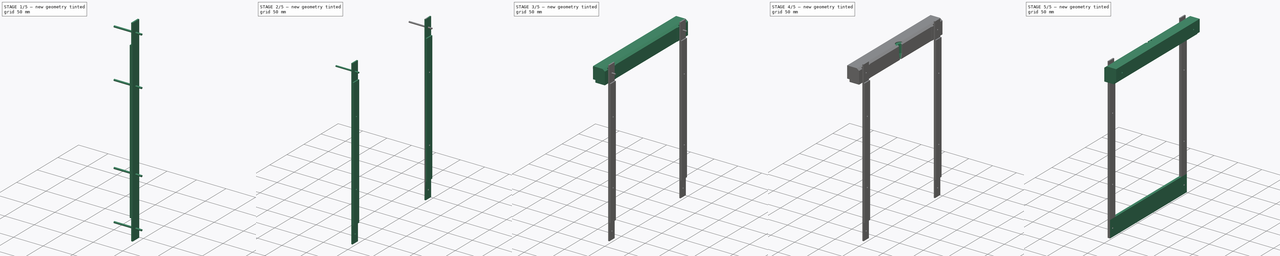
[diagram: build sequence overview — one tinted view per stage of 5, left to right]
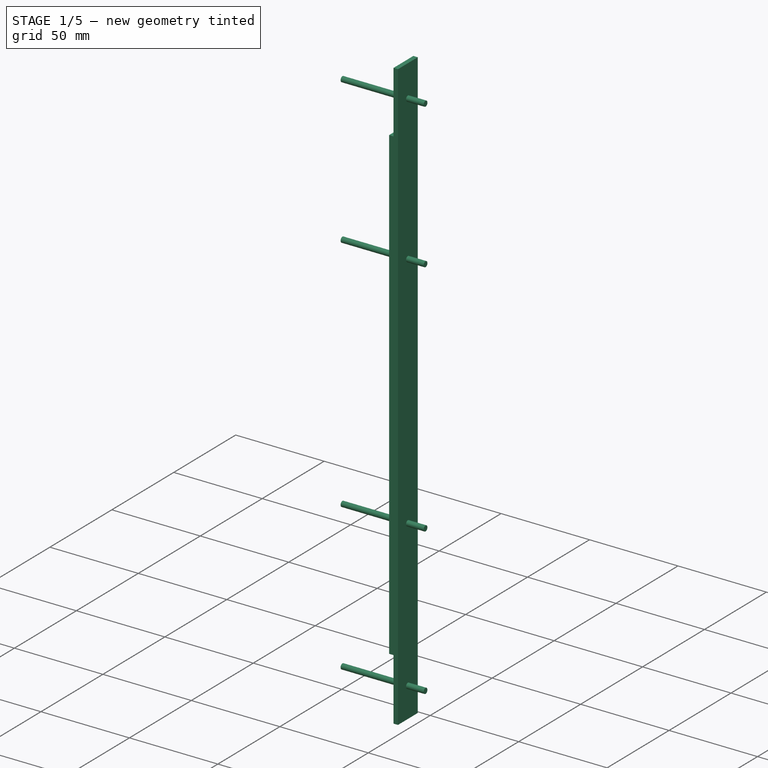
[diagram: stage 1 of 5 — iso view after this stage's code; geometry added in this stage tinted green]
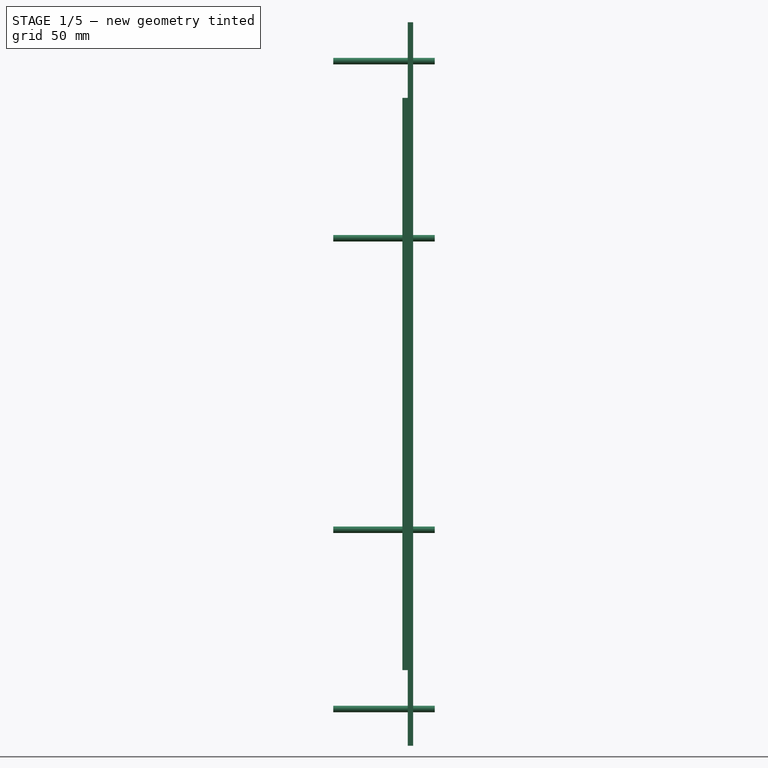
[diagram: stage 1 of 5 — front view after this stage's code; geometry added in this stage tinted green]
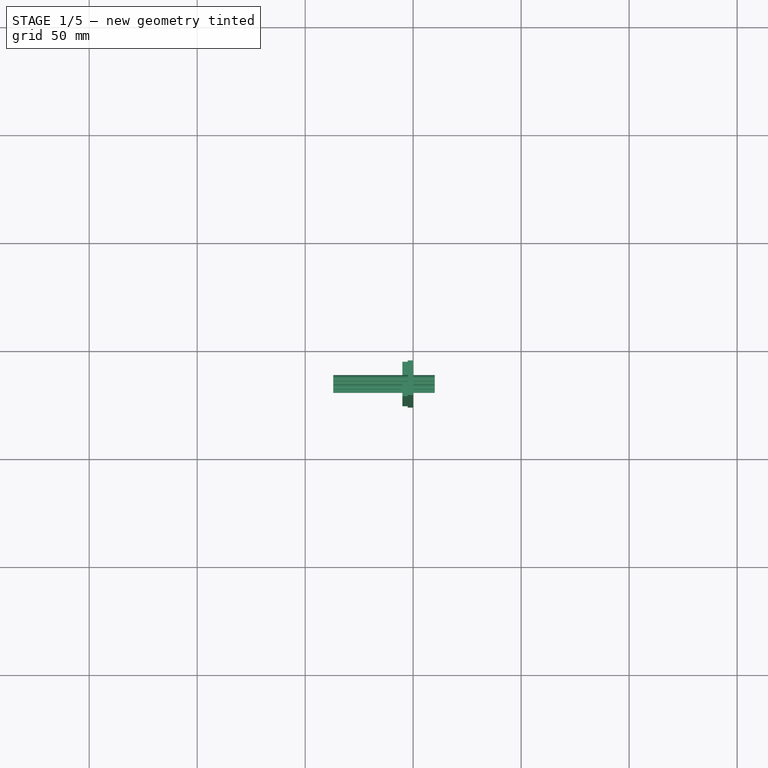
[diagram: stage 1 of 5 — top view after this stage's code; geometry added in this stage tinted green]
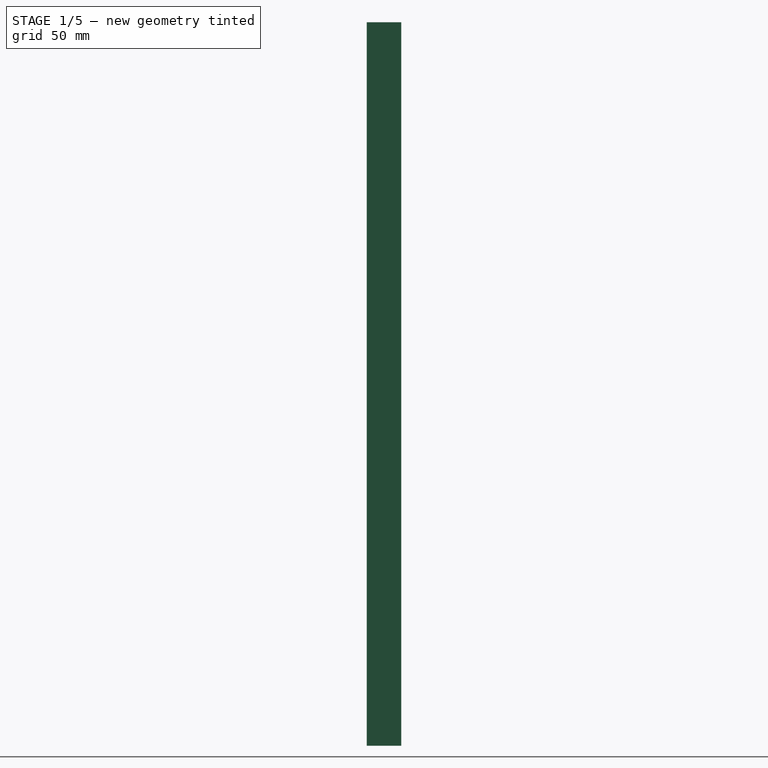
[diagram: stage 1 of 5 — right view after this stage's code; geometry added in this stage tinted green]
FCSTD DOCUMENT
Label: rhizotron_blueprints_3
objects: Part::Cylinder×10, Part::Cut×6, Part::MultiFuse×5, Drawing::FeatureViewPart×4, Sketcher::SketchObject×3, PartDesign::Pad×3, Part::Box×3, Part::Mirroring×3, Drawing::FeaturePage×2, Part::Cone×1
note: 37 computed .brp shape members not serialized (recipe doc carries the construction recipe); baked Part::Feature solids carry a one-line shape summary decoded from their .brp

FEATURE [Sketcher::SketchObject] Sketch001
  Placement = pos=(0,-10,0) rot=(1,0,0;1.57079rad)
  sketch-geometry (8):
    g0: LineSegment StartX=-5 StartY=-265 StartZ=0 EndX=-5 EndY=0 EndZ=0
    g1: LineSegment StartX=-5 StartY=0 StartZ=0 EndX=-2.5 EndY=0 EndZ=0
    g2: LineSegment StartX=-2.5 StartY=0 StartZ=0 EndX=-2.5 EndY=35 EndZ=0
    g3: LineSegment StartX=-2.5 StartY=35 StartZ=0 EndX=0 EndY=35 EndZ=0
    g4: LineSegment StartX=0 StartY=35 StartZ=0 EndX=0 EndY=-300 EndZ=0
    g5: LineSegment StartX=0 StartY=-300 StartZ=0 EndX=-2.5 EndY=-300 EndZ=0
    g6: LineSegment StartX=-2.5 StartY=-300 StartZ=0 EndX=-2.5 EndY=-265 EndZ=0
    g7: LineSegment StartX=-2.5 StartY=-265 StartZ=0 EndX=-5 EndY=-265 EndZ=0
  constraints (24):
    c: Vertical(g0)
    c: Coincident(g0,g1)
    c: Horizontal(g1)
    c: Coincident(g1,g2)
    c: Vertical(g2)
    c: Coincident(g2,g3)
    c: Horizontal(g3)
    c: Coincident(g3,g4)
    c: Vertical(g4)
    c: Coincident(g4,g5)
    c: Horizontal(g5)
    c: Coincident(g5,g6)
    c: Vertical(g6)
    c: Coincident(g6,g7)
    c: Coincident(g7,g0)
    c: Horizontal(g7)
    c: Equal(g6,g2)
    c: Equal(g1,g7)
    c: DistanceX(g0,g3) = 5
    c: Distance(g3) = 2.5
    c: Distance(g6) = 35
    c: DistanceY(g1,g5) = -300
    c: DistanceX(g1) = -2.5
    c: DistanceY(g1) = 0
FEATURE [PartDesign::Pad] Pad002  label="side"
  Length = 16
  Length2 = 100
  Placement = pos=(0,-10,0) rot=(1,0,0;1.57079rad)
  Sketch = -> Sketch001
  Type = 0
FEATURE [Sketcher::SketchObject] Sketch002
  Placement = pos=(0,0,0) rot=(0.57735,0.57735,0.57735;2.0944rad)
  sketch-geometry (4):
    g0: LineSegment StartX=-10 StartY=-300 StartZ=0 EndX=-240 EndY=-300 EndZ=0
    g1: LineSegment StartX=-240 StartY=-300 StartZ=0 EndX=-240 EndY=-265 EndZ=0
    g2: LineSegment StartX=-240 StartY=-265 StartZ=0 EndX=-10 EndY=-265 EndZ=0
    g3: LineSegment StartX=-10 StartY=-265 StartZ=0 EndX=-10 EndY=-300 EndZ=0
  constraints (12):
    c: Coincident(g0,g1)
    c: Coincident(g1,g2)
    c: Coincident(g2,g3)
    c: Coincident(g3,g0)
    c: Horizontal(g0)
    c: Horizontal(g2)
    c: Vertical(g1)
    c: Vertical(g3)
    c: Distance(g0) = 230
    c: Distance(g1) = 35
    c: DistanceX(g2) = -10
    c: DistanceY(g2) = -265
FEATURE [Part::Cylinder] Cylinder006
  Angle = 360
  Height = 47
  Placement = pos=(-37,-18,-65) rot=(0,1,0;1.5708rad)
  Radius = 1.5
FEATURE [Part::Cylinder] Cylinder008
  Angle = 360
  Height = 47
  Placement = pos=(-37,-18,-200) rot=(0,1,0;1.5708rad)
  Radius = 1.5
FEATURE [Part::Cylinder] Cylinder011
  Angle = 360
  Height = 47
  Placement = pos=(-37,-18,-283) rot=(0,1,0;1.5708rad)
  Radius = 1.5
FEATURE [Part::Cylinder] Cylinder012
  Angle = 360
  Height = 47
  Placement = pos=(-37,-18,17) rot=(0,1,0;1.5708rad)
  Radius = 1.5
FEATURE [Part::MultiFuse] Fusion004  label="Side holes"
  Shapes = -> [Cylinder006,Cylinder008,Cylinder011,Cylinder012]
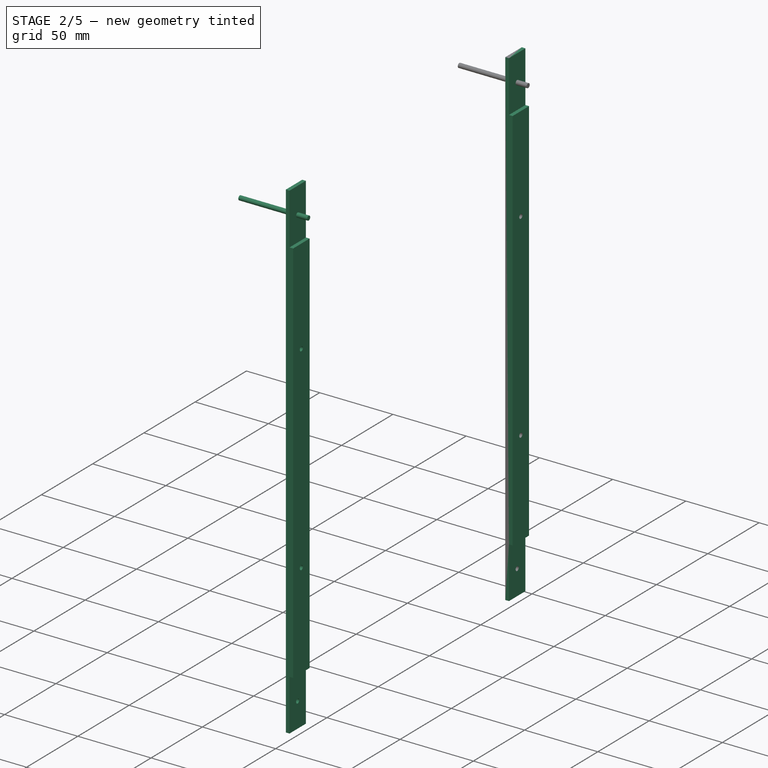
[diagram: stage 2 of 5 — iso view after this stage's code; geometry added in this stage tinted green]
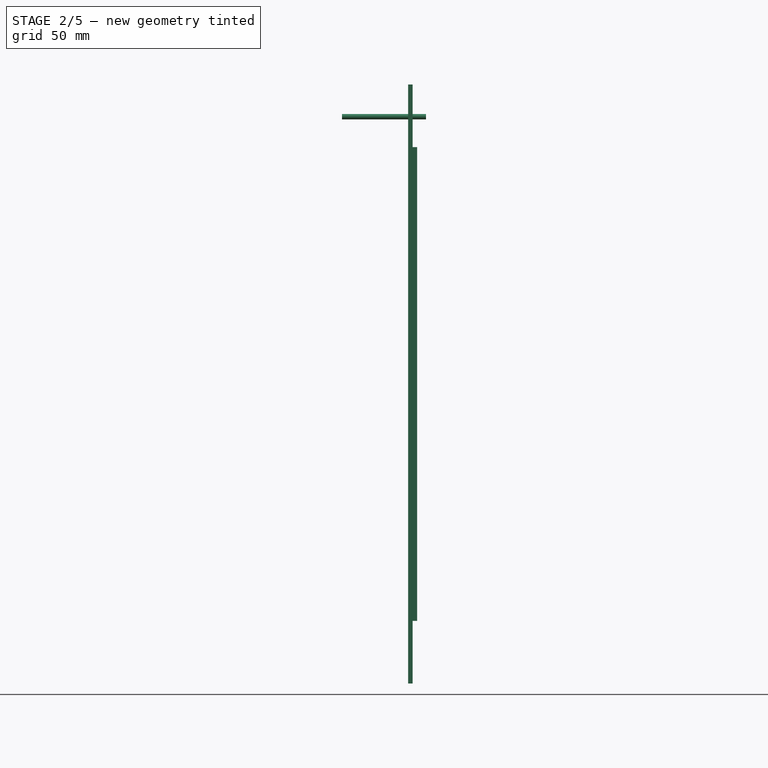
[diagram: stage 2 of 5 — front view after this stage's code; geometry added in this stage tinted green]
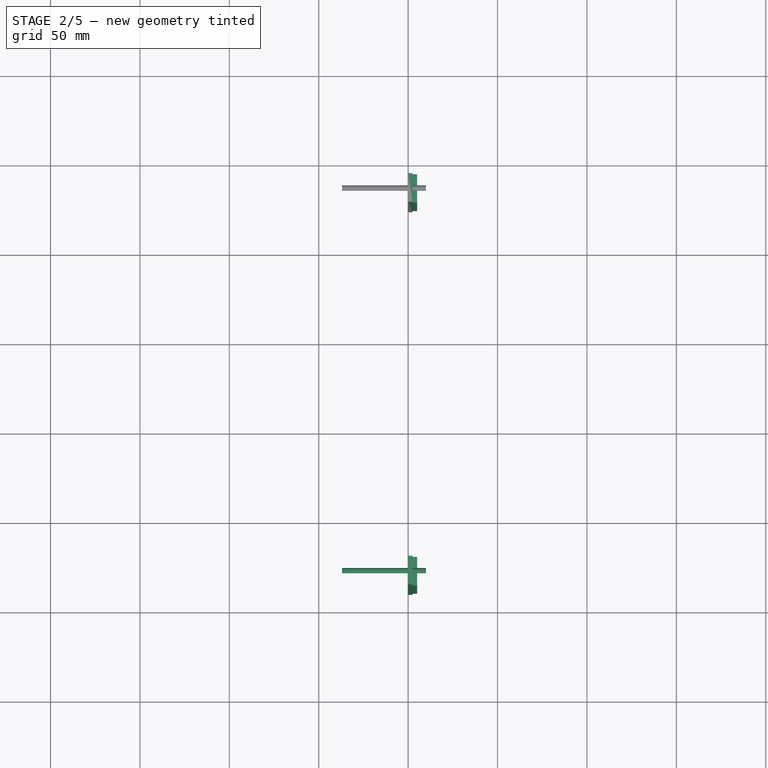
[diagram: stage 2 of 5 — top view after this stage's code; geometry added in this stage tinted green]
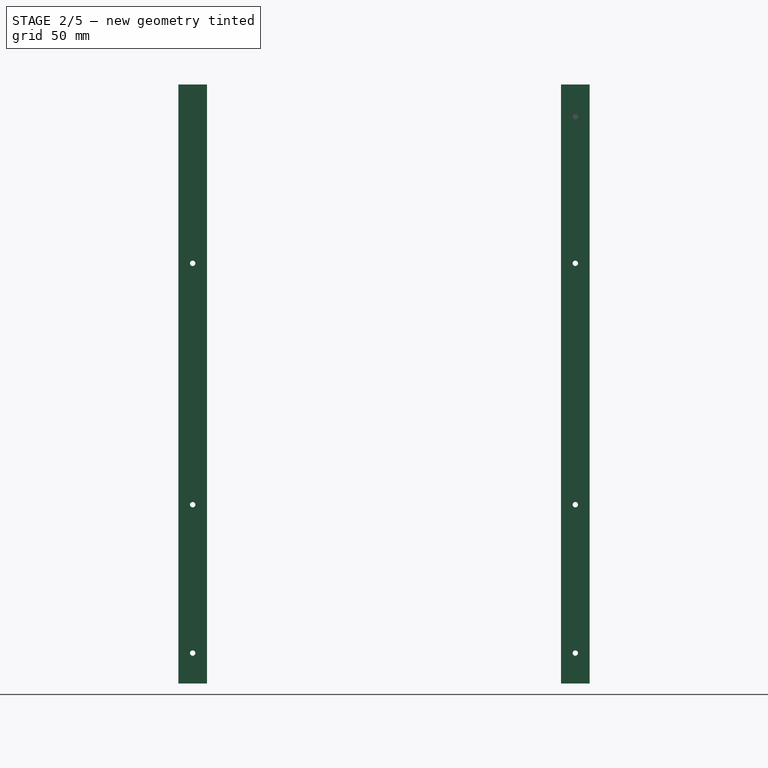
[diagram: stage 2 of 5 — right view after this stage's code; geometry added in this stage tinted green]
FEATURE [Part::Cylinder] Cylinder002
  Angle = 360
  Height = 47
  Placement = pos=(-37,-18,17) rot=(0,1,0;1.5708rad)
  Radius = 1.5
FEATURE [Part::Cylinder] Cylinder003
  Angle = 360
  Height = 47
  Placement = pos=(-37,-232,17) rot=(0,1,0;1.5708rad)
  Radius = 1.5
FEATURE [Part::Cut] Cut004  label="Side-final"
  Base = -> Pad002
  Tool = -> Fusion004
FEATURE [Part::Mirroring] Part__Mirroring001  label="Side-final (Mirror #2)"
  Base = (0,0,0)
  Normal = (1,0,0)
  Source = -> Cut004
FEATURE [Part::Cut] Cut005  label="Side-final001"
  Base = -> Pad002
  Placement = pos=(0,-214,0) rot=(0,0,1;0rad)
  Tool = -> Fusion004
FEATURE [Part::Mirroring] Part__Mirroring002  label="Side-final (Mirror #2)001"
  Base = (0,0,0)
  Normal = (1,0,0)
  Source = -> Cut005
FEATURE [Drawing::FeatureViewPart] Ortho  label="Top"
  Direction = (0,0,1)
  LineWidth = 0.35
  Rotation = 90
  Scale = 0.75
  ShowHiddenLines = true
  ShowSmoothLines = false
  Source = -> Cut002
  ViewResult = <blob: 4581 chars omitted>
  X = 77.15
  Y = 91.975
FEATURE [Drawing::FeatureViewPart] Ortho001  label="Front"
  Direction = (0,1,0)
  LineWidth = 0.35
  Rotation = 0
  Scale = 0.75
  ShowHiddenLines = true
  ShowSmoothLines = false
  Source = -> Cut002
  ViewResult = <blob: 4334 chars omitted>
  X = 32.65
  Y = 91.975
FEATURE [Drawing::FeatureViewPart] Ortho002  label="Right"
  Direction = (1,0,0)
  LineWidth = 0.35
  Rotation = -90
  Scale = 0.75
  ShowHiddenLines = true
  ShowSmoothLines = false
  Source = -> Cut002
  ViewResult = <blob: 4158 chars omitted>
  X = 77.15
  Y = 135.85
FEATURE [Drawing::FeatureViewPart] View
  Direction = (1,1,1)
  LineWidth = 0.35
  Rotation = 90
  Scale = 0.75
  ShowHiddenLines = false
  ShowSmoothLines = false
  Source = -> Cut002
  ViewResult = <blob: 5049 chars omitted>
  X = 77
  Y = 50
FEATURE [Drawing::FeaturePage] Page
  EditableTexts = X : X | Part name | Company name | Drawer name | Controller name | Date | 01 | 001 - 001 | ISO2768 - fH | Material
  Group = -> [Ortho,Ortho001,Ortho002,View]
  Template = <userpath>/Desktop/A4_Landscape_english.svg
FEATURE [Drawing::FeaturePage] Page001
  EditableTexts = X : X | Part name | Company name | Drawer name | Controller name | Date | 01 | 001 - 001 | ISO2768 - fH | Material
  Template = <userpath>/Desktop/A4_Landscape_english.svg
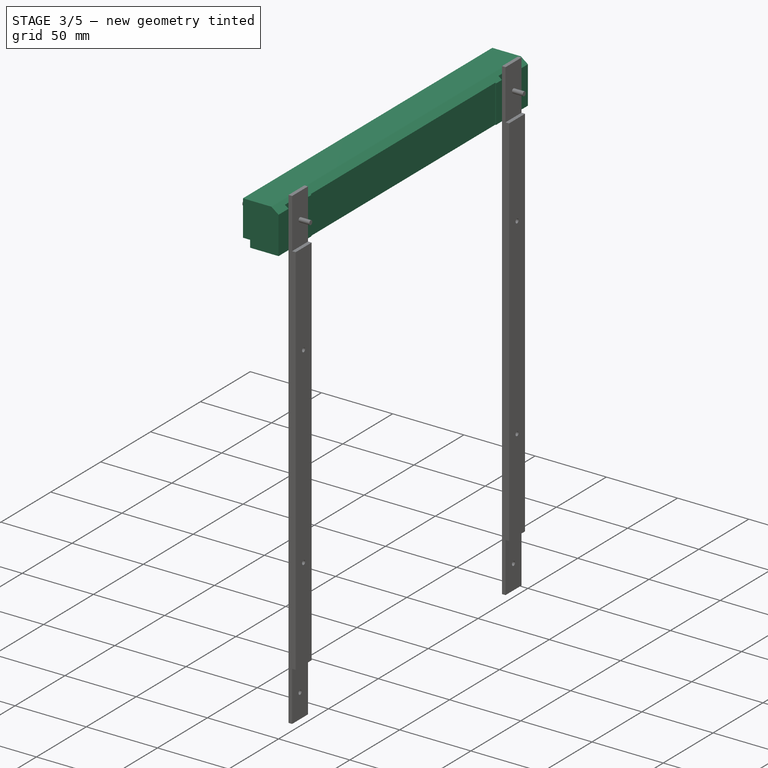
[diagram: stage 3 of 5 — iso view after this stage's code; geometry added in this stage tinted green]
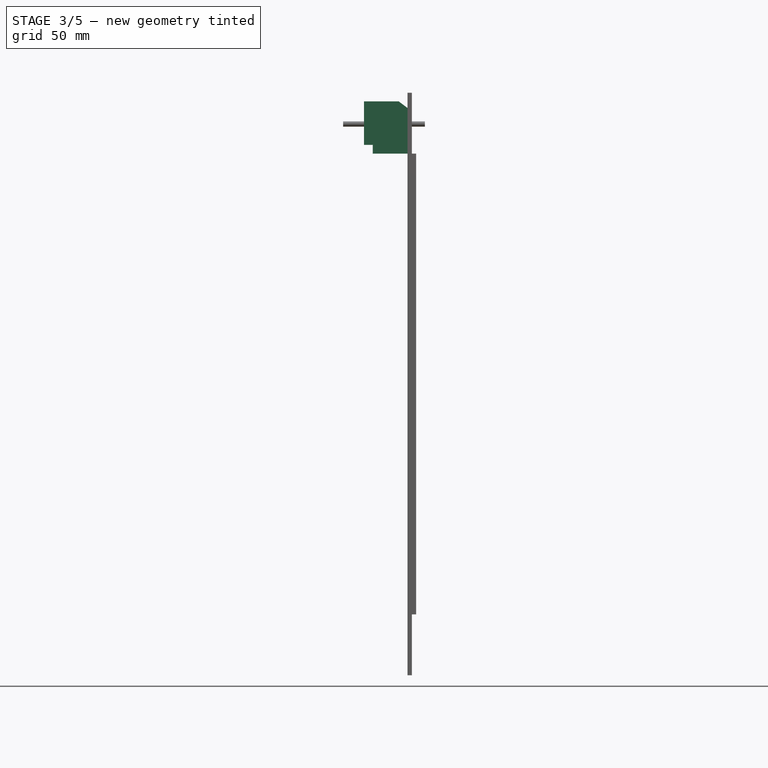
[diagram: stage 3 of 5 — front view after this stage's code; geometry added in this stage tinted green]
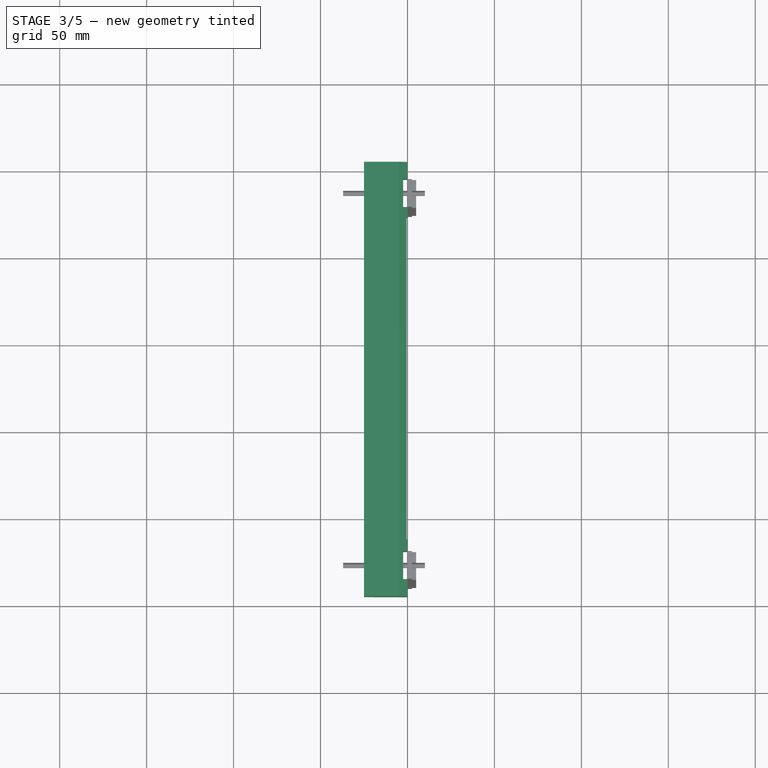
[diagram: stage 3 of 5 — top view after this stage's code; geometry added in this stage tinted green]
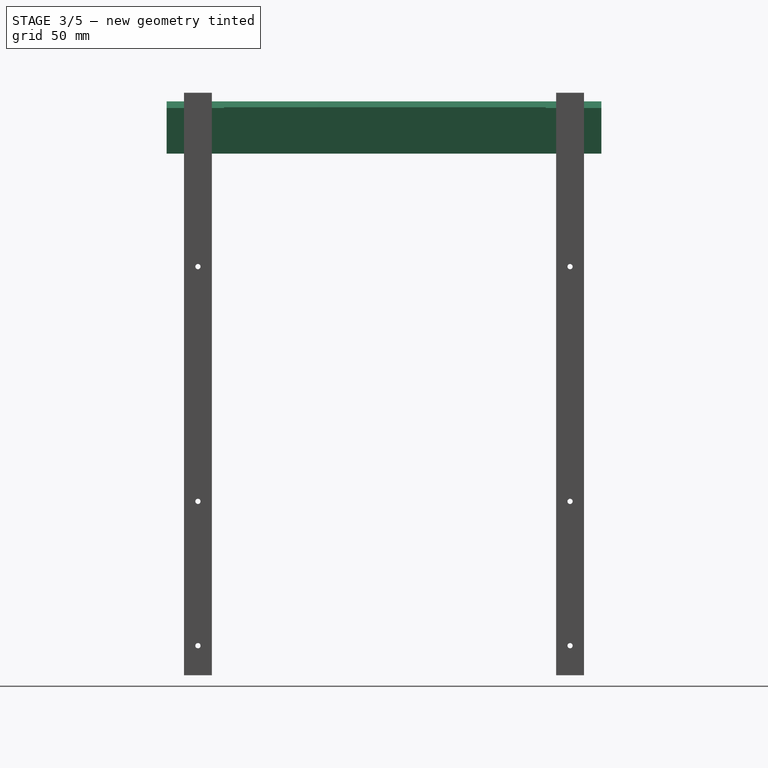
[diagram: stage 3 of 5 — right view after this stage's code; geometry added in this stage tinted green]
FEATURE [Sketcher::SketchObject] Sketch
  Placement = pos=(0,0,0) rot=(1,0,0;1.5708rad)
  sketch-geometry (7):
    g0: LineSegment StartX=-20 StartY=0 StartZ=0 EndX=-20 EndY=5 EndZ=0
    g1: LineSegment StartX=-20 StartY=5 StartZ=0 EndX=-25 EndY=5 EndZ=0
    g2: LineSegment StartX=-25 StartY=5 StartZ=0 EndX=-25 EndY=30 EndZ=0
    g3: LineSegment StartX=-25 StartY=30 StartZ=0 EndX=-5 EndY=30 EndZ=0
    g4: LineSegment StartX=-5 StartY=30 StartZ=0 EndX=0 EndY=26.2453 EndZ=0
    g5: LineSegment StartX=0 StartY=26.2453 StartZ=0 EndX=0 EndY=0 EndZ=0
    g6: LineSegment StartX=0 StartY=0 StartZ=0 EndX=-20 EndY=0 EndZ=0
  constraints (21):
    c: Vertical(g0)
    c: Coincident(g0,g1)
    c: Coincident(g1,g2)
    c: Vertical(g2)
    c: Coincident(g2,g3)
    c: Horizontal(g3)
    c: Coincident(g3,g4)
    c: Coincident(g4,g5)
    c: Vertical(g5)
    c: Coincident(g5,g6)
    c: Coincident(g6,g0)
    c: Horizontal(g6)
    c: Perpendicular(g1,g2)
    c: Distance(g3) = 20
    c: Distance(g1) = 5
    c: Distance(g0) = 5
    c: DistanceX(g2,g4) = 25
    c: DistanceY(g2,g0) = -30
    c: Angle(g3,g4) = 2.49749
    c: DistanceY(g1) = 5
    c: DistanceX(g1) = -25
FEATURE [PartDesign::Pad] Pad
  Length = 250
  Length2 = 100
  Placement = pos=(0,0,0) rot=(1,0,0;1.5708rad)
  Sketch = -> Sketch
  Type = 0
FEATURE [Part::Box] Box
  Height = 45
  Length = 6.6
  Placement = pos=(-2.5,-26,-4) rot=(0,0,1;0rad)
  Width = 16
FEATURE [Part::Box] Box001
  Height = 45
  Length = 7.6
  Placement = pos=(-2.5,-240,-4) rot=(0,0,1;0rad)
  Width = 16
FEATURE [Part::Box] Box002
  Height = 45
  Length = 2.6
  Placement = pos=(-0.5,-217,-17) rot=(0,0,1;0rad)
  Width = 185
FEATURE [Part::MultiFuse] Fusion001
  Shapes = -> [Box001,Box002,Box]
FEATURE [Part::Cut] Cut
  Base = -> Pad
  Tool = -> Fusion001
FEATURE [Part::MultiFuse] Fusion002
  Shapes = -> [Cylinder002,Cylinder003]
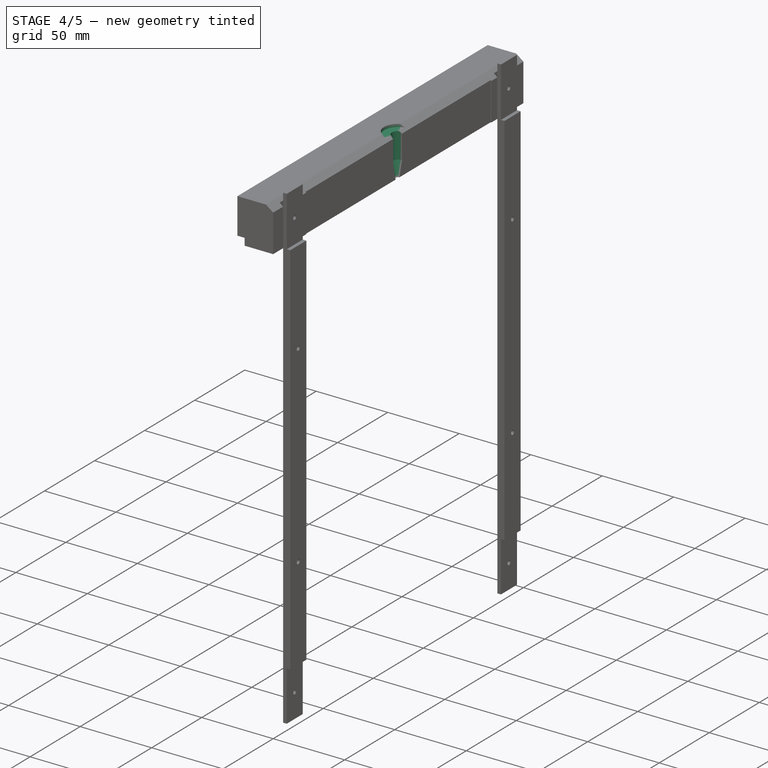
[diagram: stage 4 of 5 — iso view after this stage's code; geometry added in this stage tinted green]
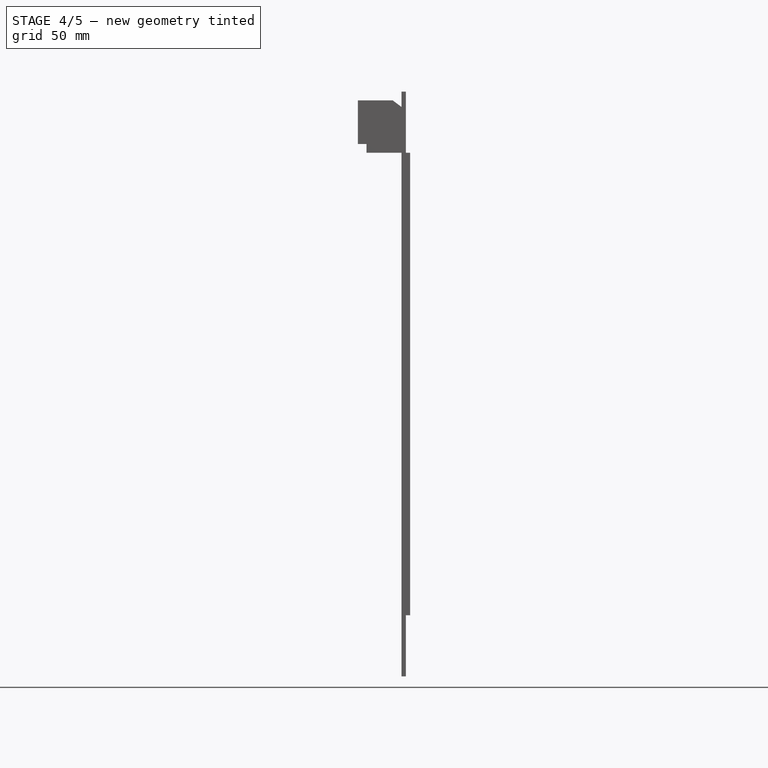
[diagram: stage 4 of 5 — front view after this stage's code; geometry added in this stage tinted green]
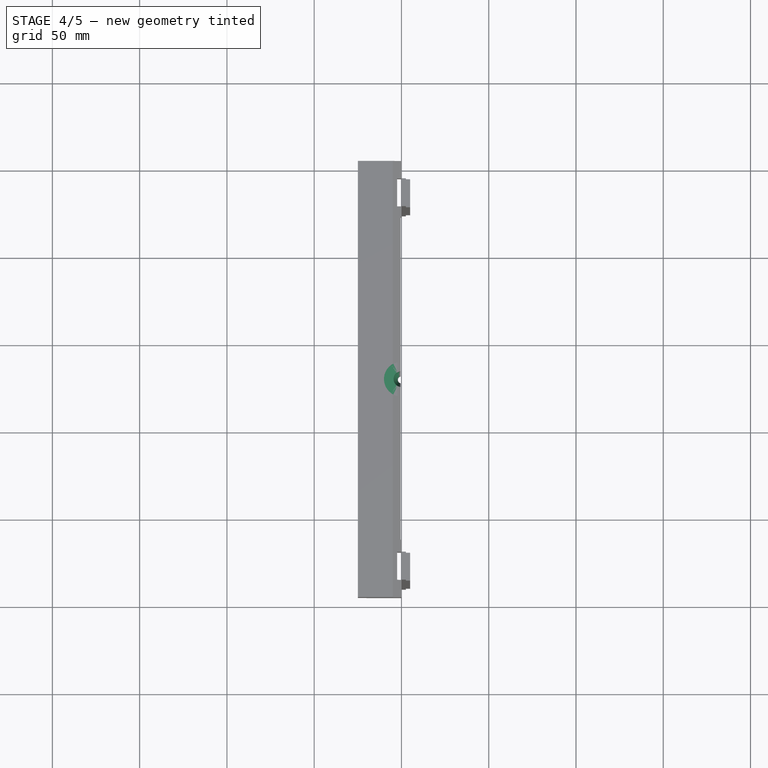
[diagram: stage 4 of 5 — top view after this stage's code; geometry added in this stage tinted green]
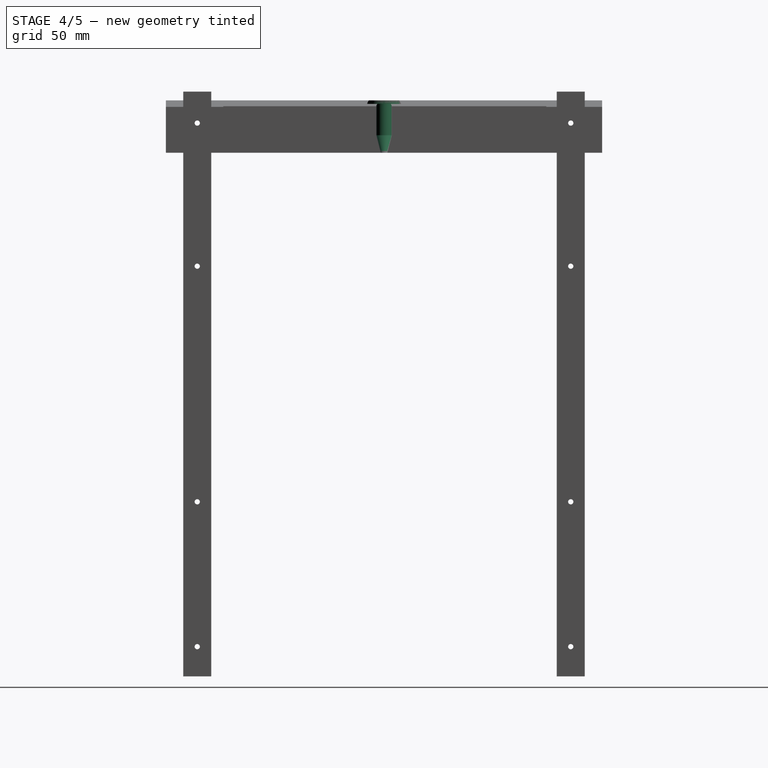
[diagram: stage 4 of 5 — right view after this stage's code; geometry added in this stage tinted green]
FEATURE [Part::Cylinder] Cylinder
  Angle = 360
  Height = 2
  Placement = pos=(0,0,28) rot=(0,0,1;0rad)
  Radius = 10
FEATURE [Part::Cone] Cone
  Angle = 360
  Height = 10
  Radius1 = 2
  Radius2 = 4.5
FEATURE [Part::Cylinder] Cylinder001
  Angle = 360
  Height = 20
  Placement = pos=(0,0,10) rot=(0,0,1;0rad)
  Radius = 4.5
FEATURE [Part::MultiFuse] Fusion
  Placement = pos=(0,-125,0) rot=(0,0,1;0rad)
  Shapes = -> [Cylinder001,Cone,Cylinder]
FEATURE [Part::Cut] Cut001
  Base = -> Cut
  Tool = -> Fusion
FEATURE [Part::Cut] Cut002  label="Top-final"
  Base = -> Cut001
  Tool = -> Fusion002
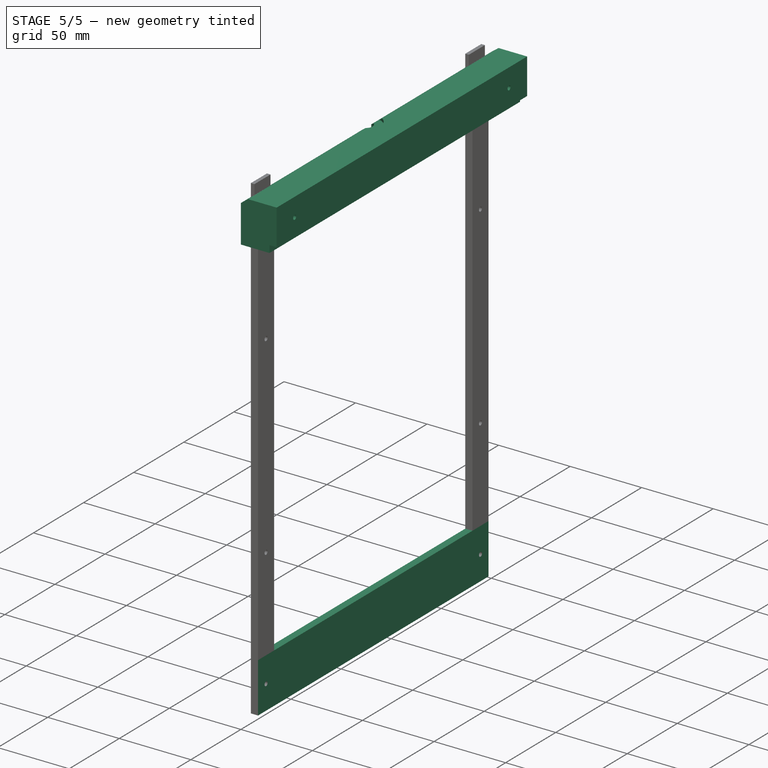
[diagram: stage 5 of 5 — iso view after this stage's code; geometry added in this stage tinted green]
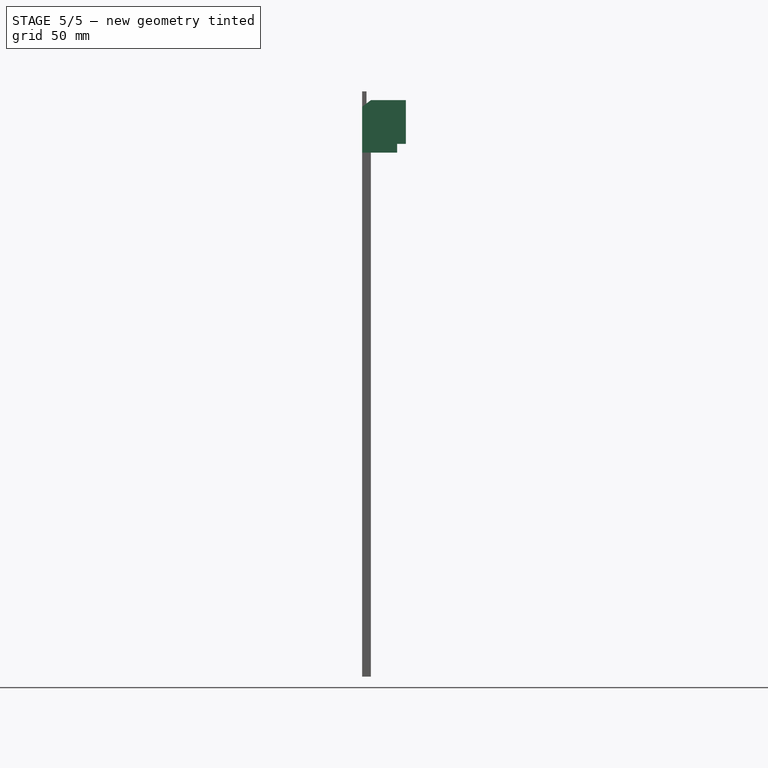
[diagram: stage 5 of 5 — front view after this stage's code; geometry added in this stage tinted green]
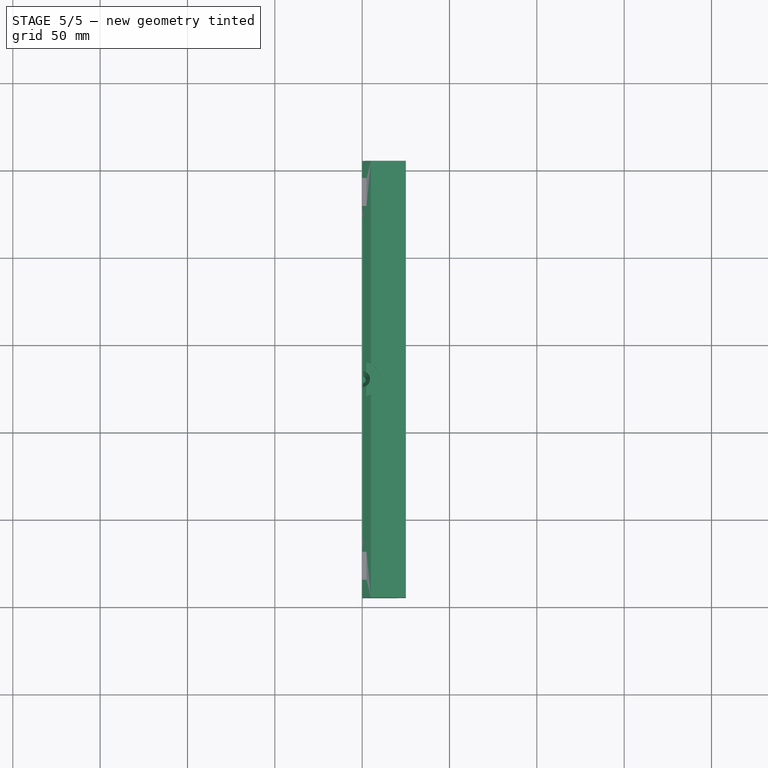
[diagram: stage 5 of 5 — top view after this stage's code; geometry added in this stage tinted green]
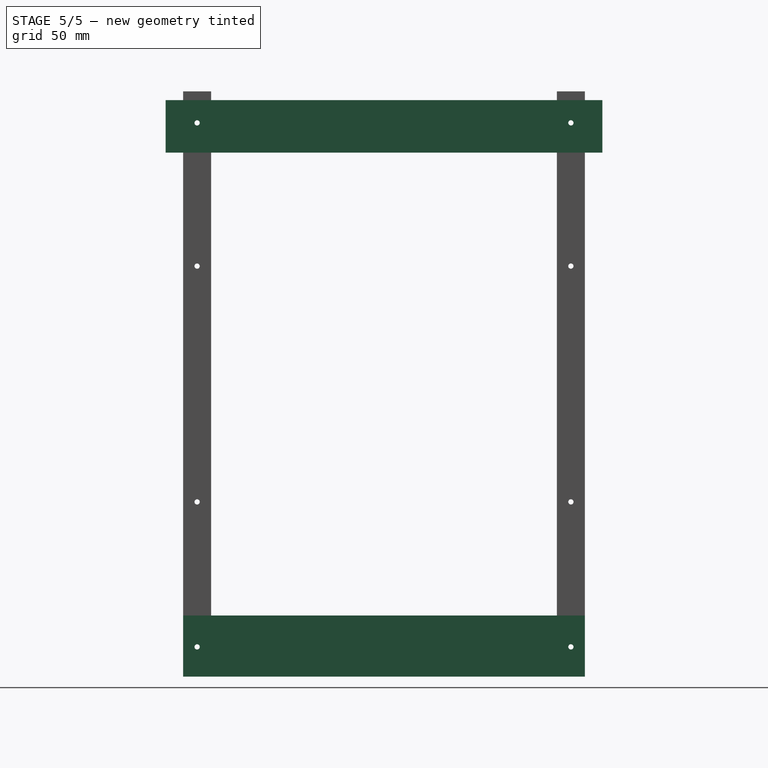
[diagram: stage 5 of 5 — right view after this stage's code; geometry added in this stage tinted green]
FEATURE [Part::Cylinder] Cylinder004
  Angle = 360
  Height = 47
  Placement = pos=(-37,-232,-283) rot=(0,1,0;1.5708rad)
  Radius = 1.5
FEATURE [PartDesign::Pad] Pad003  label="bottom"
  Length = 5
  Length2 = 100
  Placement = pos=(0,0,0) rot=(0.57735,0.57735,0.57735;2.0944rad)
  Sketch = -> Sketch002
  Type = 0
FEATURE [Part::Cylinder] Cylinder009
  Angle = 360
  Height = 47
  Placement = pos=(-37,-18,-283) rot=(0,1,0;1.5708rad)
  Radius = 1.5
FEATURE [Part::MultiFuse] Fusion003  label="Bottom holes"
  Shapes = -> [Cylinder004,Cylinder009]
FEATURE [Part::Cut] Cut003  label="Bottom-final"
  Base = -> Pad003
  Tool = -> Fusion003
FEATURE [Part::Mirroring] Part__Mirroring  label="Top-final (Mirror #1)"
  Base = (0,0,0)
  Normal = (1,0,0)
  Source = -> Cut002
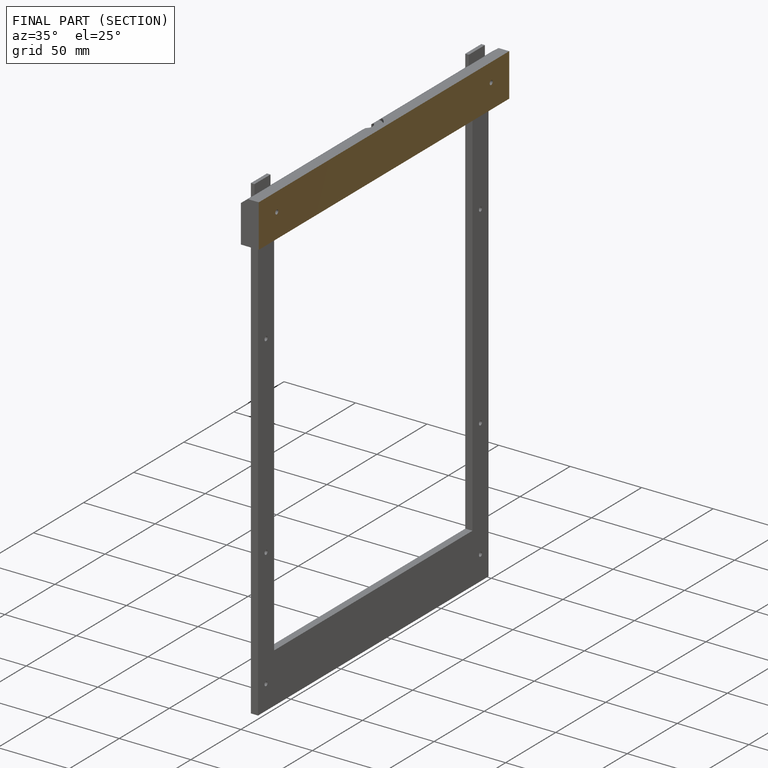
[diagram: finished part — half-section view (interior)]
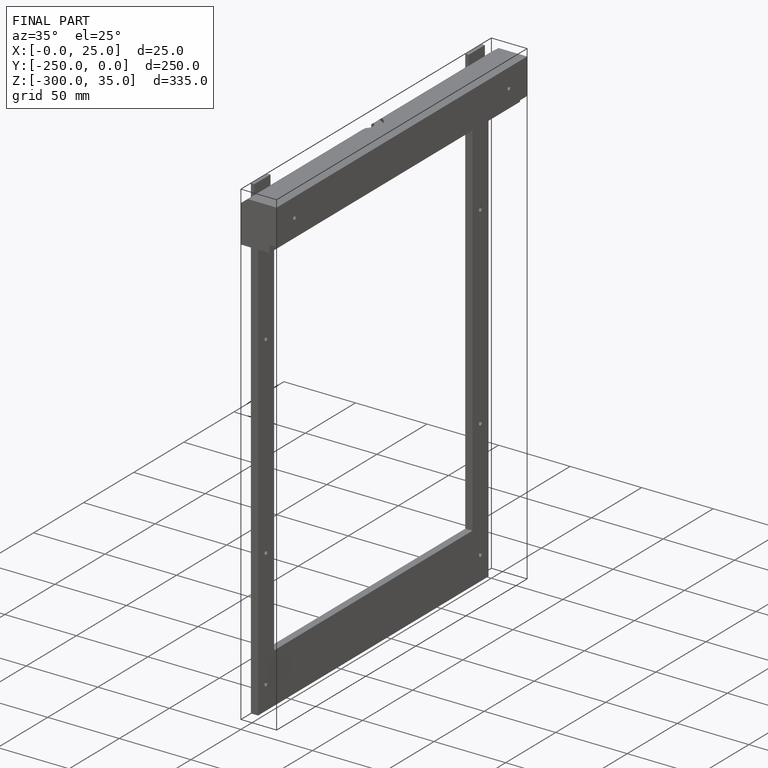
[diagram: finished part — iso view with bounding-box wireframe]
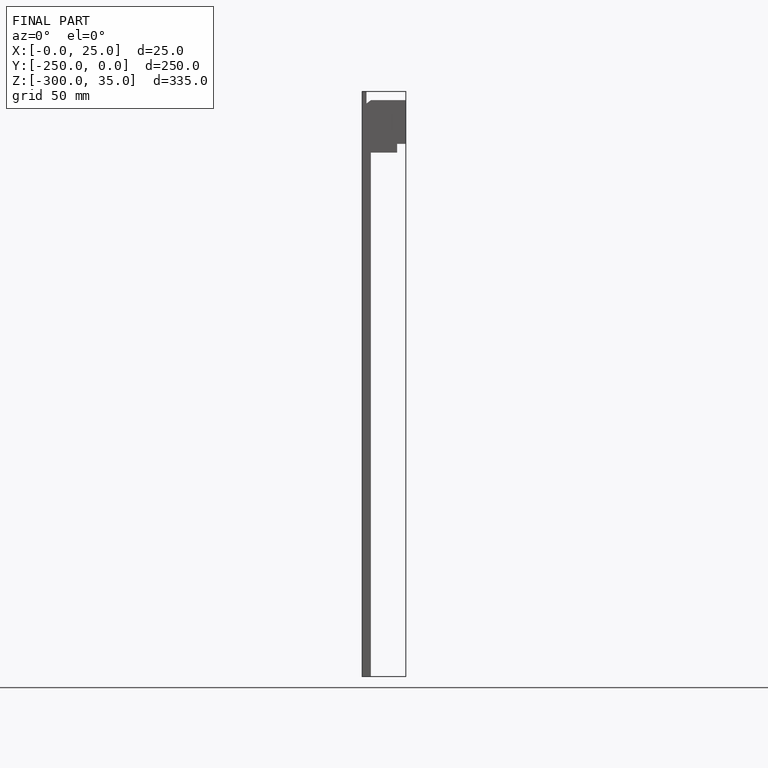
[diagram: finished part — front view with bounding-box wireframe]
